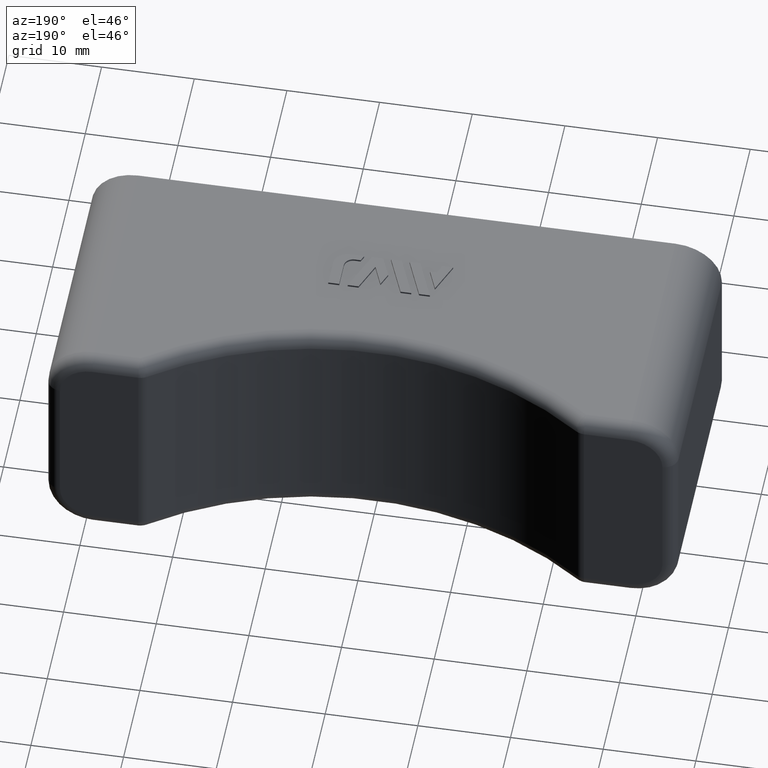
[diagram: clean part render]
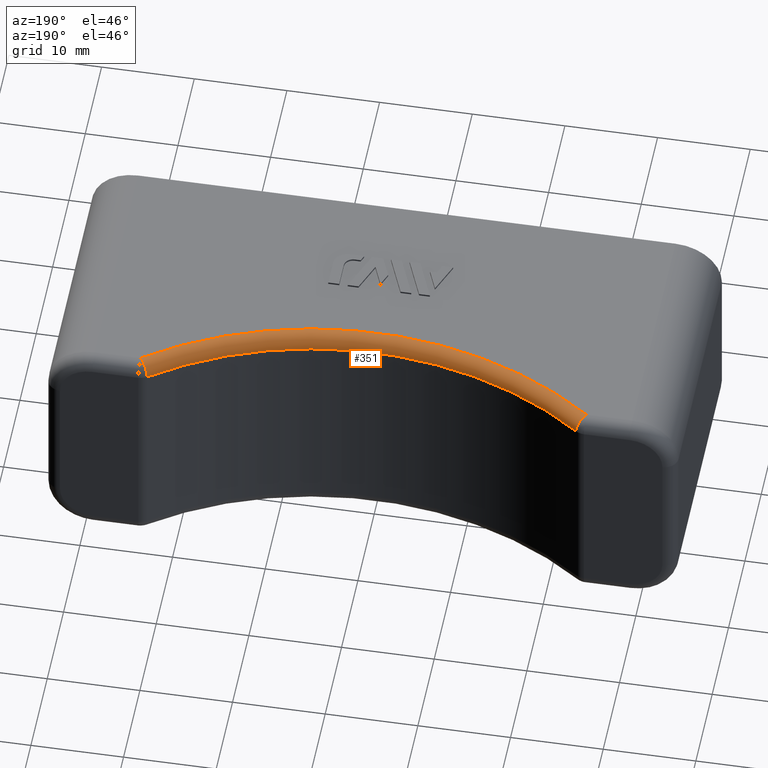
[diagram: same view with one face highlighted and labeled with its STEP entity id]
A machine part, auxiliary view. The second image highlights one B-rep face of the part: STEP entity #351.
In plain terms, the highlighted toroidal blend (fillet) surface has major radius 40.15 mm and minor (blend) radius 1.5 mm.
Its self-contained STEP definition (entity closure, byte-faithful):
#351 = ADVANCED_FACE( '', ( #1076 ), #1077, .T. );
#1076 = FACE_OUTER_BOUND( '', #1918, .T. );
#1077 = TOROIDAL_SURFACE( '', #1919, 40.1500000000000, 1.50000000000000 );
#1918 = EDGE_LOOP( '', ( #4437, #4438, #4439, #4440 ) );
#1919 = AXIS2_PLACEMENT_3D( '', #4441, #4442, #4443 );
#4437 = ORIENTED_EDGE( '', *, *, #6197, .T. );
#4438 = ORIENTED_EDGE( '', *, *, #6180, .F. );
#4439 = ORIENTED_EDGE( '', *, *, #6199, .F. );
#4440 = ORIENTED_EDGE( '', *, *, #5615, .F. );
#4441 = CARTESIAN_POINT( '', ( 0.000000000000000, 58.6500000000000, 11.0000000000000 ) );
#4442 = DIRECTION( '', ( 0.000000000000000, 0.000000000000000, -1.00000000000000 ) );
#4443 = DIRECTION( '', ( -1.00000000000000, 0.000000000000000, 0.000000000000000 ) );
#5615 = EDGE_CURVE( '', #6900, #6901, #6902, .T. );
#6180 = EDGE_CURVE( '', #7004, #7770, #7771, .F. );
#6197 = EDGE_CURVE( '', #6900, #7770, #7795, .F. );
#6199 = EDGE_CURVE( '', #6901, #7004, #7797, .T. );
#6900 = VERTEX_POINT( '', #8837 );
#6901 = VERTEX_POINT( '', #8838 );
#6902 = CIRCLE( '', #8839, 40.1500000000000 );
#7004 = VERTEX_POINT( '', #8982 );
#7770 = VERTEX_POINT( '', #10115 );
#7771 = CIRCLE( '', #10116, 38.6500000000000 );
#7795 = CIRCLE( '', #10147, 1.50000000000000 );
#7797 = CIRCLE( '', #10149, 1.50000000000000 );
#8837 = CARTESIAN_POINT( '', ( 24.0499480248919, 26.5000000000000, 12.5000000000000 ) );
#8838 = CARTESIAN_POINT( '', ( -24.0499480248919, 26.5000000000000, 12.5000000000000 ) );
#8839 = AXIS2_PLACEMENT_3D( '', #10725, #10726, #10727 );
#8982 = CARTESIAN_POINT( '', ( -23.1514443626917, 27.7011207970112, 11.0000000000000 ) );
#10115 = CARTESIAN_POINT( '', ( 23.1514443626917, 27.7011207970112, 11.0000000000000 ) );
#10116 = AXIS2_PLACEMENT_3D( '', #11604, #11605, #11606 );
#10147 = AXIS2_PLACEMENT_3D( '', #11641, #11642, #11643 );
#10149 = AXIS2_PLACEMENT_3D( '', #11647, #11648, #11649 );
#10725 = CARTESIAN_POINT( '', ( 0.000000000000000, 58.6500000000000, 12.5000000000000 ) );
#10726 = DIRECTION( '', ( 0.000000000000000, 0.000000000000000, -1.00000000000000 ) );
#10727 = DIRECTION( '', ( -1.00000000000000, 0.000000000000000, 0.000000000000000 ) );
#11604 = CARTESIAN_POINT( '', ( 0.000000000000000, 58.6500000000000, 11.0000000000000 ) );
#11605 = DIRECTION( '', ( 0.000000000000000, 0.000000000000000, -1.00000000000000 ) );
#11606 = DIRECTION( '', ( -1.00000000000000, 0.000000000000000, 0.000000000000000 ) );
#11641 = CARTESIAN_POINT( '', ( 24.0499480248919, 26.5000000000000, 11.0000000000000 ) );
#11642 = DIRECTION( '', ( 0.800747198007471, 0.599002441466797, 2.77094292634633E-015 ) );
#11643 = DIRECTION( '', ( -0.599002441466797, 0.800747198007471, 0.000000000000000 ) );
#11647 = CARTESIAN_POINT( '', ( -24.0499480248919, 26.5000000000000, 11.0000000000000 ) );
#11648 = DIRECTION( '', ( -0.800747198007472, 0.599002441466796, 0.000000000000000 ) );
#11649 = DIRECTION( '', ( -0.599002441466796, -0.800747198007472, 0.000000000000000 ) );